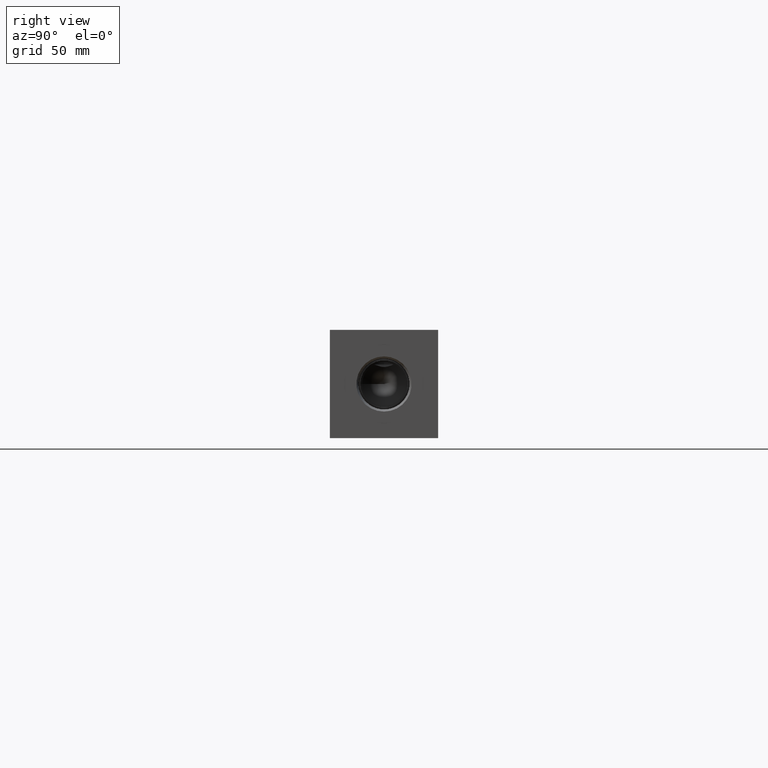
[diagram: clean part render]
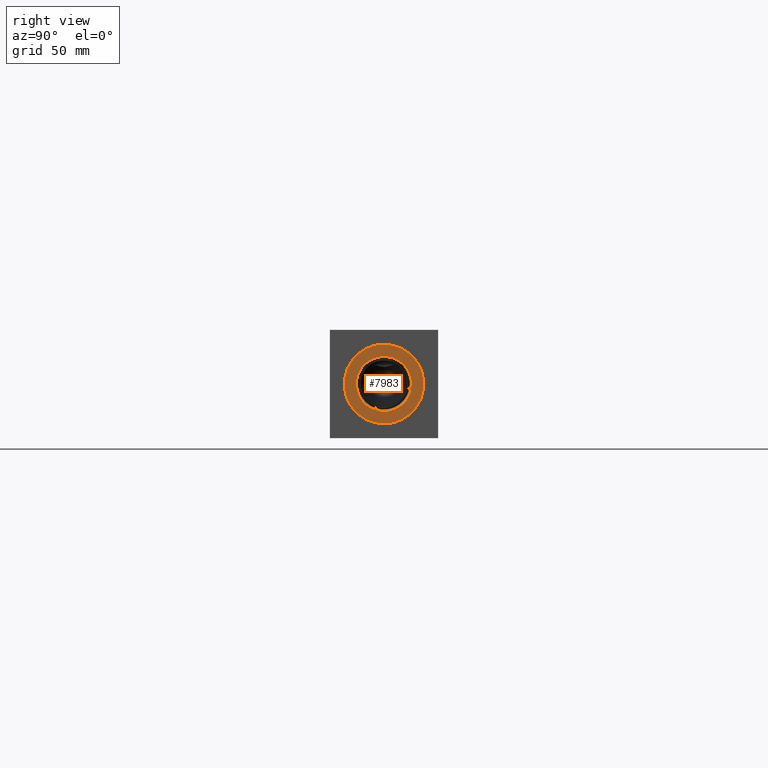
[diagram: same view with one face highlighted and labeled with its STEP entity id]
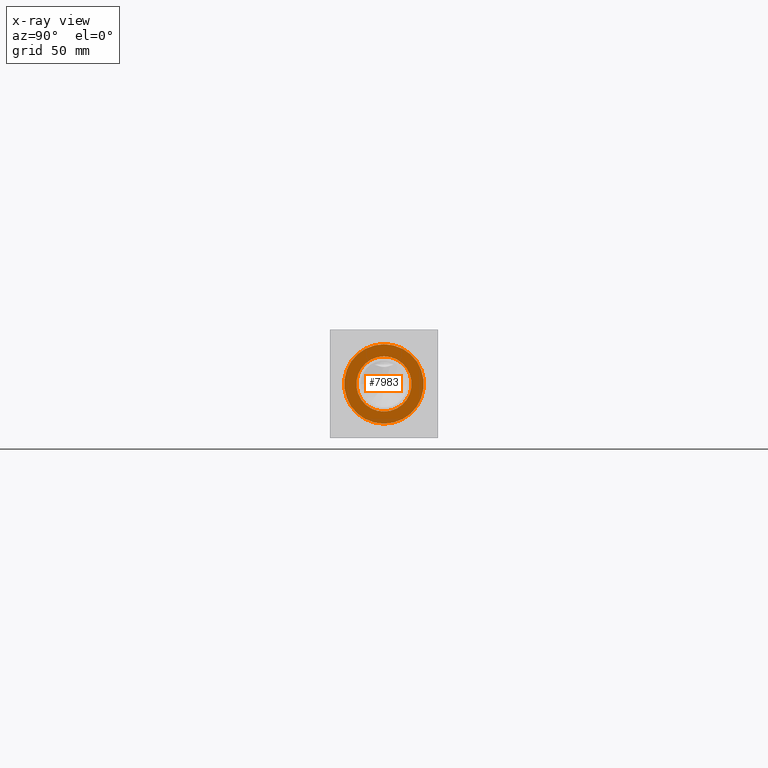
[diagram: x-ray of the same camera — body ghosted, the highlighted face saturated]
A machine part, right view. The second image highlights one B-rep face of the part: STEP entity #7983.
The next image is the same camera in x-ray: the body ghosted, the highlighted face saturated — about 0% of this face is hidden behind the body in this view.
In plain terms, the highlighted planar face has unit normal (-1, 0, 0).
Its self-contained STEP definition (entity closure, byte-faithful):
#139=CIRCLE('',#8323,21.0185);
#140=CIRCLE('',#8324,21.0185);
#141=CIRCLE('',#8326,14.5923);
#142=CIRCLE('',#8327,14.5923);
#311=FACE_BOUND('',#1327,.T.);
#529=PLANE('',#8325);
#871=FACE_OUTER_BOUND('',#1326,.T.);
#1326=EDGE_LOOP('',(#6744,#6745));
#1327=EDGE_LOOP('',(#6746,#6747));
#3700=VERTEX_POINT('',#13638);
#3701=VERTEX_POINT('',#13640);
#3702=VERTEX_POINT('',#13644);
#3703=VERTEX_POINT('',#13645);
#4750=EDGE_CURVE('',#3700,#3701,#139,.T.);
#4751=EDGE_CURVE('',#3701,#3700,#140,.T.);
#4752=EDGE_CURVE('',#3702,#3703,#141,.T.);
#4753=EDGE_CURVE('',#3703,#3702,#142,.T.);
#6744=ORIENTED_EDGE('',*,*,#4751,.F.);
#6745=ORIENTED_EDGE('',*,*,#4750,.F.);
#6746=ORIENTED_EDGE('',*,*,#4752,.T.);
#6747=ORIENTED_EDGE('',*,*,#4753,.T.);
#7983=ADVANCED_FACE('',(#871,#311),#529,.F.);
#8323=AXIS2_PLACEMENT_3D('',#13641,#9643,#9644);
#8324=AXIS2_PLACEMENT_3D('',#13642,#9645,#9646);
#8325=AXIS2_PLACEMENT_3D('',#13643,#9647,#9648);
#8326=AXIS2_PLACEMENT_3D('',#13646,#9649,#9650);
#8327=AXIS2_PLACEMENT_3D('',#13647,#9651,#9652);
#9643=DIRECTION('center_axis',(-1.,0.,0.));
#9644=DIRECTION('ref_axis',(0.,0.,1.));
#9645=DIRECTION('center_axis',(-1.,0.,0.));
#9646=DIRECTION('ref_axis',(0.,0.,1.));
#9647=DIRECTION('center_axis',(-1.,0.,0.));
#9648=DIRECTION('ref_axis',(0.,0.,1.));
#9649=DIRECTION('center_axis',(-1.,0.,0.));
#9650=DIRECTION('ref_axis',(0.,0.,1.));
#9651=DIRECTION('center_axis',(-1.,0.,0.));
#9652=DIRECTION('ref_axis',(0.,0.,1.));
#13638=CARTESIAN_POINT('',(377.0376,28.575,49.5935));
#13640=CARTESIAN_POINT('',(377.0376,28.575,7.5565));
#13641=CARTESIAN_POINT('Origin',(377.0376,28.575,28.575));
#13642=CARTESIAN_POINT('Origin',(377.0376,28.575,28.575));
#13643=CARTESIAN_POINT('Origin',(377.0376,28.575,13.9827));
#13644=CARTESIAN_POINT('',(377.0376,28.575,13.9827));
#13645=CARTESIAN_POINT('',(377.0376,28.575,43.1673));
#13646=CARTESIAN_POINT('Origin',(377.0376,28.575,28.575));
#13647=CARTESIAN_POINT('Origin',(377.0376,28.575,28.575));